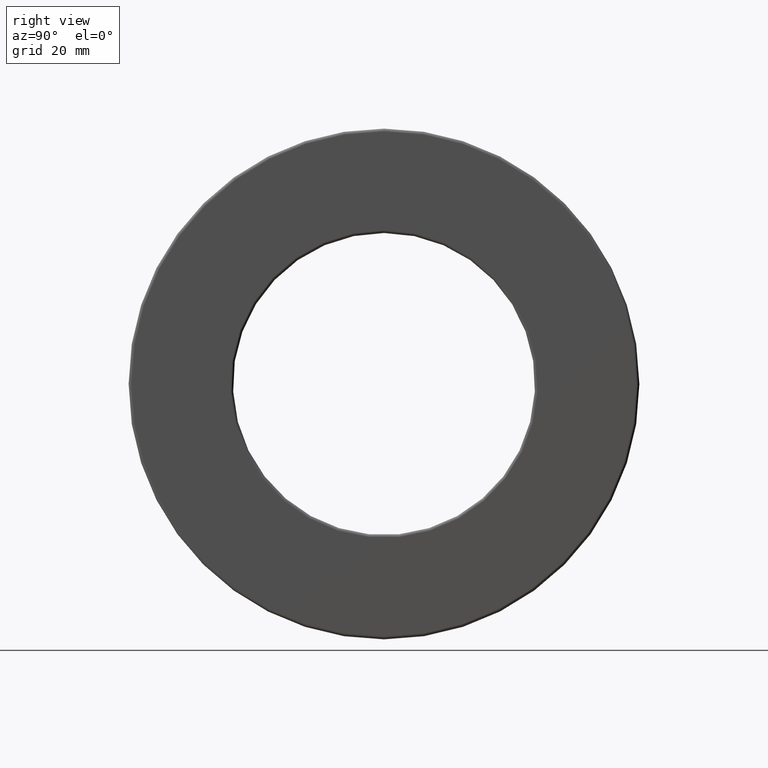
[diagram: clean part render]
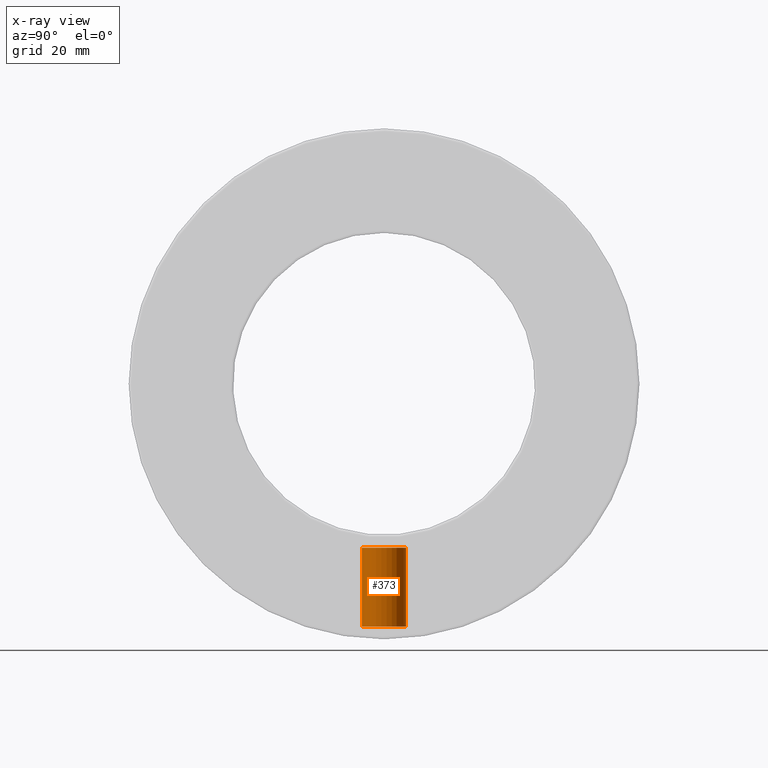
[diagram: x-ray — body ghosted, one internal face saturated and labeled with its STEP entity id]
A machine part, right view, then the same camera in x-ray: the body is ghosted and one INTERNAL B-rep face — a face not visible from any outside direction — is saturated and labeled: STEP entity #373.
In plain terms, the highlighted cylindrical surface (bore or boss wall) has radius 3.9624 mm, axis along (0, -0, -1).
Its self-contained STEP definition (entity closure, byte-faithful):
#22 = EDGE_LOOP ( 'NONE', ( #1271 ) ) ;
#32 = CARTESIAN_POINT ( 'NONE',  ( 0.0000000000000000000, -4.023932243016710900E-015, -1.152500000000000100 ) ) ;
#45 = DIRECTION ( 'NONE',  ( 0.0000000000000000000, -3.491481338843133400E-015, -1.000000000000000000 ) ) ;
#107 = EDGE_CURVE ( 'NONE', #1272, #1272, #1114, .T. ) ;
#225 = CARTESIAN_POINT ( 'NONE',  ( 0.0000000000000000000, 0.0000000000000000000, 0.0000000000000000000 ) ) ;
#255 = DIRECTION ( 'NONE',  ( 0.0000000000000000000, 1.000000000000000000, -3.502369222646491400E-015 ) ) ;
#261 = CARTESIAN_POINT ( 'NONE',  ( 0.0000000000000000000, -5.959522210237873800E-015, -1.706875000000000100 ) ) ;
#373 = ADVANCED_FACE ( 'NONE', ( #778, #659 ), #1338, .T. ) ;
#397 = CIRCLE ( 'NONE', #801, 0.1559999999999998600 ) ;
#510 = AXIS2_PLACEMENT_3D ( 'NONE', #32, #45, #255 ) ;
#558 = DIRECTION ( 'NONE',  ( 0.0000000000000000000, -3.491481338843133400E-015, -1.000000000000000000 ) ) ;
#584 = DIRECTION ( 'NONE',  ( 0.0000000000000000000, -3.491481338843133400E-015, -1.000000000000000000 ) ) ;
#632 = CARTESIAN_POINT ( 'NONE',  ( 0.0000000000000000000, 0.1559999999999959500, -1.152500000000000500 ) ) ;
#659 = FACE_OUTER_BOUND ( 'NONE', #1424, .T. ) ;
#778 = FACE_OUTER_BOUND ( 'NONE', #22, .T. ) ;
#801 = AXIS2_PLACEMENT_3D ( 'NONE', #261, #584, #1123 ) ;
#851 = EDGE_CURVE ( 'NONE', #991, #991, #397, .T. ) ;
#911 = DIRECTION ( 'NONE',  ( 0.0000000000000000000, 1.000000000000000000, -3.491481338843133400E-015 ) ) ;
#991 = VERTEX_POINT ( 'NONE', #1198 ) ;
#1114 = CIRCLE ( 'NONE', #510, 0.1560000000000000000 ) ;
#1123 = DIRECTION ( 'NONE',  ( 0.0000000000000000000, 1.000000000000000000, -3.502369222646494500E-015 ) ) ;
#1130 = ORIENTED_EDGE ( 'NONE', *, *, #851, .F. ) ;
#1198 = CARTESIAN_POINT ( 'NONE',  ( 0.0000000000000000000, 0.1559999999999938700, -1.706875000000000600 ) ) ;
#1271 = ORIENTED_EDGE ( 'NONE', *, *, #107, .T. ) ;
#1272 = VERTEX_POINT ( 'NONE', #632 ) ;
#1329 = AXIS2_PLACEMENT_3D ( 'NONE', #225, #558, #911 ) ;
#1338 = CYLINDRICAL_SURFACE ( 'NONE', #1329, 0.1559999999999999200 ) ;
#1424 = EDGE_LOOP ( 'NONE', ( #1130 ) ) ;